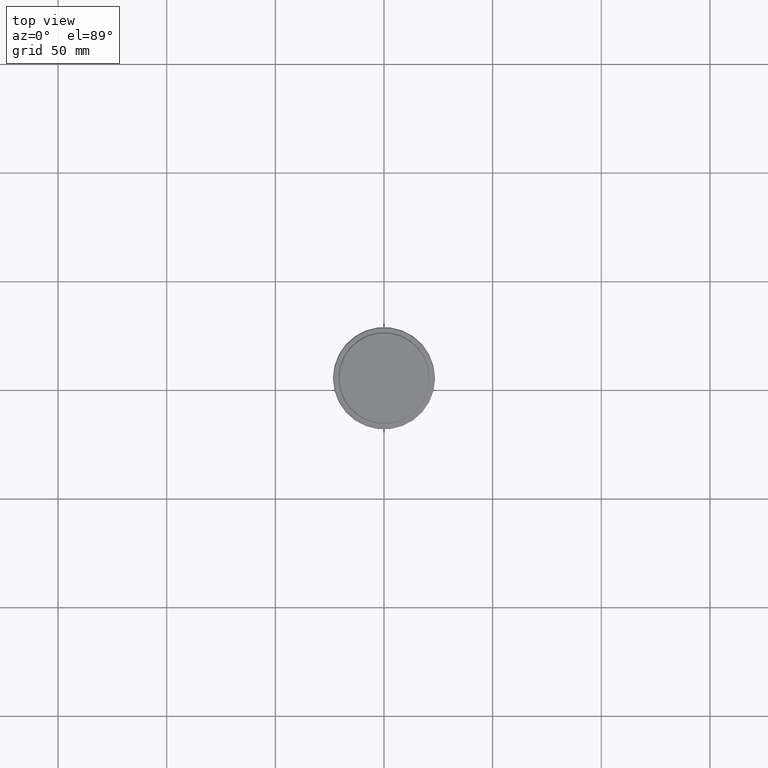
[diagram: clean part render]
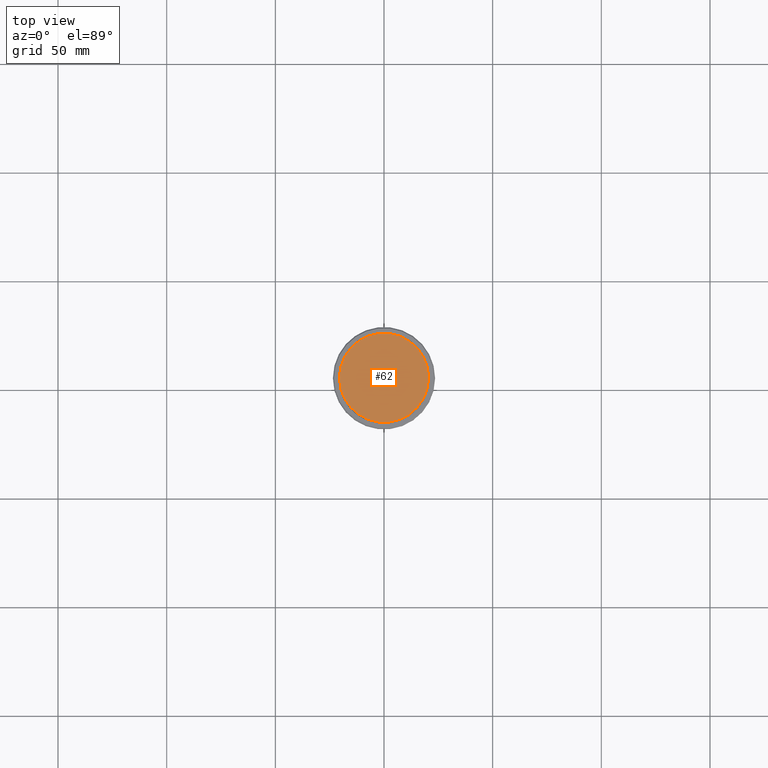
[diagram: same view with one face highlighted and labeled with its STEP entity id]
A machine part, top view. The second image highlights one B-rep face of the part: STEP entity #62.
In plain terms, the highlighted planar face has unit normal (0, -0, 1).
Its self-contained STEP definition (entity closure, byte-faithful):
#1 = CIRCLE ( 'NONE', #702, 20.49999999999998934 ) ;
#12 = DIRECTION ( 'NONE',  ( -0.000000000000000000, -0.000000000000000000, 1.000000000000000000 ) ) ;
#16 = AXIS2_PLACEMENT_3D ( 'NONE', #351, #12, #337 ) ;
#36 = DIRECTION ( 'NONE',  ( 1.000000000000000000, 0.000000000000000000, 0.000000000000000000 ) ) ;
#50 = CARTESIAN_POINT ( 'NONE',  ( -20.49999999999998934, 0.000000000000000000, 0.000000000000000000 ) ) ;
#62 = ADVANCED_FACE ( 'NONE', ( #987 ), #1318, .T. ) ;
#73 = EDGE_CURVE ( 'NONE', #201, #596, #701, .T. ) ;
#106 = DIRECTION ( 'NONE',  ( 1.000000000000000000, 0.000000000000000000, 0.000000000000000000 ) ) ;
#183 = AXIS2_PLACEMENT_3D ( 'NONE', #459, #758, #106 ) ;
#201 = VERTEX_POINT ( 'NONE', #50 ) ;
#239 = EDGE_CURVE ( 'NONE', #596, #201, #1, .T. ) ;
#337 = DIRECTION ( 'NONE',  ( 1.000000000000000000, 0.000000000000000000, 0.000000000000000000 ) ) ;
#351 = CARTESIAN_POINT ( 'NONE',  ( 0.000000000000000000, 0.000000000000000000, 0.000000000000000000 ) ) ;
#459 = CARTESIAN_POINT ( 'NONE',  ( 0.000000000000000000, 0.000000000000000000, 0.000000000000000000 ) ) ;
#465 = CARTESIAN_POINT ( 'NONE',  ( 0.000000000000000000, 0.000000000000000000, 0.000000000000000000 ) ) ;
#596 = VERTEX_POINT ( 'NONE', #925 ) ;
#701 = CIRCLE ( 'NONE', #16, 20.49999999999998934 ) ;
#702 = AXIS2_PLACEMENT_3D ( 'NONE', #465, #896, #36 ) ;
#758 = DIRECTION ( 'NONE',  ( 0.000000000000000000, -0.000000000000000000, 1.000000000000000000 ) ) ;
#896 = DIRECTION ( 'NONE',  ( -0.000000000000000000, -0.000000000000000000, 1.000000000000000000 ) ) ;
#925 = CARTESIAN_POINT ( 'NONE',  ( 20.49999999999998934, 2.541142108230757085E-15, 0.000000000000000000 ) ) ;
#928 = ORIENTED_EDGE ( 'NONE', *, *, #239, .T. ) ;
#987 = FACE_OUTER_BOUND ( 'NONE', #1134, .T. ) ;
#1134 = EDGE_LOOP ( 'NONE', ( #1242, #928 ) ) ;
#1242 = ORIENTED_EDGE ( 'NONE', *, *, #73, .T. ) ;
#1318 = PLANE ( 'NONE',  #183 ) ;